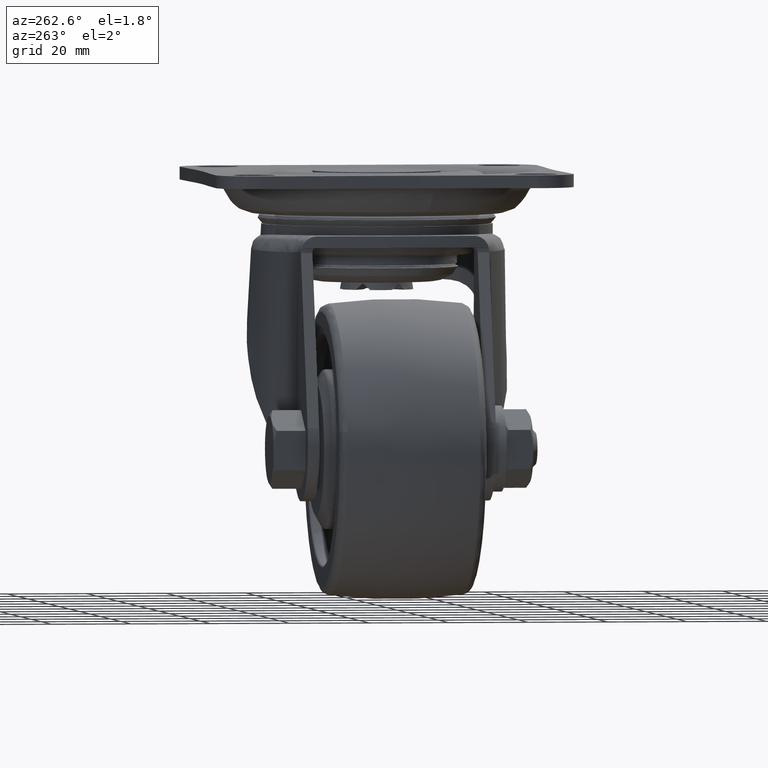
[diagram: clean part render]
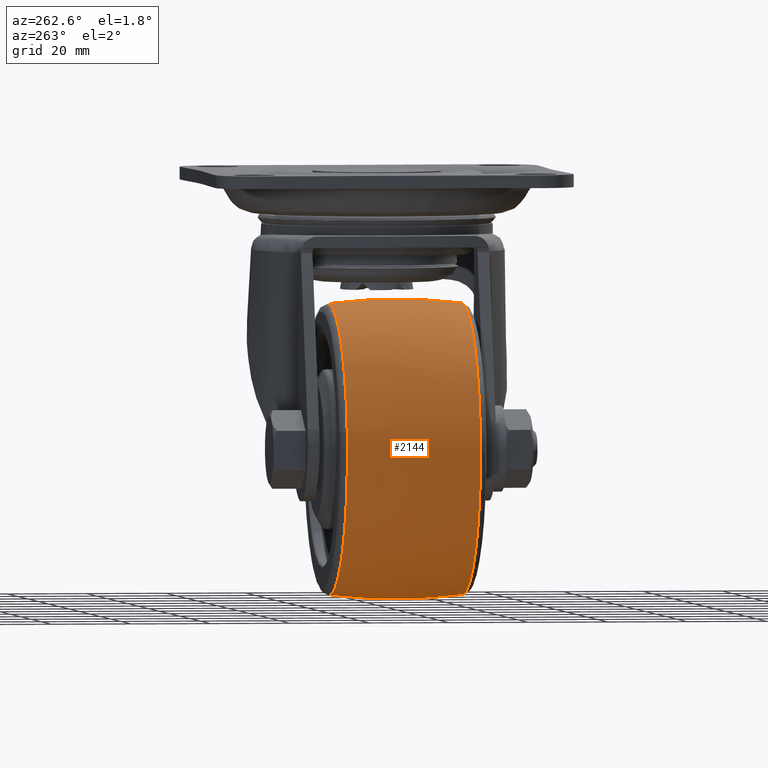
[diagram: same view with one face highlighted and labeled with its STEP entity id]
A machine part, auxiliary view. The second image highlights one B-rep face of the part: STEP entity #2144.
In plain terms, the highlighted face is a freeform B-spline surface patch.
Its self-contained STEP definition (entity closure, byte-faithful):
#1854=CARTESIAN_POINT('',(-72.128236123278612,-16.757816532794401,-73.064057613833796));
#1855=VERTEX_POINT('',#1854);
#1856=CARTESIAN_POINT('',(-36.0,-16.757817703415181,-104.915381616113090));
#1857=VERTEX_POINT('',#1856);
#1858=CARTESIAN_POINT('',(-72.128236123278612,-16.757816532794401,-73.064057613833796));
#1859=CARTESIAN_POINT('',(-68.104477913683681,-16.757817688030940,-104.915381601064270));
#1860=CARTESIAN_POINT('',(-36.0,-16.757817703415181,-104.915381616113090));
#1868=(BOUNDED_CURVE()B_SPLINE_CURVE(2,(#1858,#1859,#1860),.UNSPECIFIED.,.F.,.U.)B_SPLINE_CURVE_WITH_KNOTS((3,3),(0.771678745026697,1.0),.UNSPECIFIED.)CURVE()GEOMETRIC_REPRESENTATION_ITEM()RATIONAL_B_SPLINE_CURVE((0.953608354670807,0.732505010829369,1.0))REPRESENTATION_ITEM(''));
#1869=EDGE_CURVE('',#1855,#1857,#1868,.T.);
#1948=CARTESIAN_POINT('',(-36.0,-16.757815097045871,-32.084617906602432));
#1949=VERTEX_POINT('',#1948);
#1950=CARTESIAN_POINT('',(-36.0,-16.757815097045871,-32.084617906602432));
#1951=CARTESIAN_POINT('',(-72.415382465656535,-16.757815083482832,-32.084617893335071));
#1952=CARTESIAN_POINT('',(-72.415382346532539,-16.757816371283251,-68.499999733041548));
#1953=CARTESIAN_POINT('',(-72.415382339037890,-16.757816452304784,-70.791061527949836));
#1954=CARTESIAN_POINT('',(-72.128236123278612,-16.757816532794401,-73.064057613833796));
#1962=(BOUNDED_CURVE()B_SPLINE_CURVE(2,(#1950,#1951,#1952,#1953,#1954),.UNSPECIFIED.,.F.,.U.)B_SPLINE_CURVE_WITH_KNOTS((3,2,3),(0.500000000000000,0.750000000000000,0.771678745026697),.UNSPECIFIED.)CURVE()GEOMETRIC_REPRESENTATION_ITEM()RATIONAL_B_SPLINE_CURVE((1.0,0.707106781186547,1.0,0.974601770357179,0.953608354670807))REPRESENTATION_ITEM(''));
#1963=EDGE_CURVE('',#1949,#1855,#1962,.T.);
#2014=CARTESIAN_POINT('',(-36.0,16.757818788893740,-104.915381475010800));
#2015=VERTEX_POINT('',#2014);
#2016=CARTESIAN_POINT('',(-35.999999999999993,-16.757817703415181,-104.915381616113110));
#2017=CARTESIAN_POINT('',(-36.0,0.000000551910277,-107.093744347665620));
#2018=CARTESIAN_POINT('',(-36.0,16.757818788893736,-104.915381475010820));
#2026=(BOUNDED_CURVE()B_SPLINE_CURVE(2,(#2016,#2017,#2018),.UNSPECIFIED.,.F.,.U.)B_SPLINE_CURVE_WITH_KNOTS((3,3),(0.421172275935619,0.578827729213364),.UNSPECIFIED.)CURVE()GEOMETRIC_REPRESENTATION_ITEM()RATIONAL_B_SPLINE_CURVE((0.859354121200675,0.852184340103623,0.859354121669001))REPRESENTATION_ITEM(''));
#2027=EDGE_CURVE('',#1857,#2015,#2026,.T.);
#2044=CARTESIAN_POINT('',(-36.0,16.757818753240411,-32.084618797315329));
#2045=VERTEX_POINT('',#2044);
#2061=CARTESIAN_POINT('',(-36.0,-16.757815097045874,-32.084617906602418));
#2062=CARTESIAN_POINT('',(-36.000000000000007,0.000001859436436,-29.906255893875041));
#2063=CARTESIAN_POINT('',(-36.0,16.757818753240414,-32.084618797315336));
#2071=(BOUNDED_CURVE()B_SPLINE_CURVE(2,(#2061,#2062,#2063),.UNSPECIFIED.,.F.,.U.)B_SPLINE_CURVE_WITH_KNOTS((3,3),(0.421172288382936,0.578827729212182),.UNSPECIFIED.)CURVE()GEOMETRIC_REPRESENTATION_ITEM()RATIONAL_B_SPLINE_CURVE((0.859354120068529,0.852184340669750,0.859354121668894))REPRESENTATION_ITEM(''));
#2072=EDGE_CURVE('',#1949,#2045,#2071,.T.);
#2079=CARTESIAN_POINT('',(-34.988273708291459,-18.415811002544761,-32.311003169973574));
#2080=CARTESIAN_POINT('',(-34.914597583522294,-2.084840E-014,-29.675641148079883));
#2081=CARTESIAN_POINT('',(-34.988273708291459,18.415811002544721,-32.311003169973560));
#2082=CARTESIAN_POINT('',(-35.491190833831809,-18.415811002544761,-32.311003169973574));
#2083=CARTESIAN_POINT('',(-35.454138235794659,-2.085574E-014,-29.675641148079880));
#2084=CARTESIAN_POINT('',(-35.491190833831801,18.415811002544721,-32.311003169973553));
#2085=CARTESIAN_POINT('',(-72.188996830026440,-18.415811002544761,-32.311003169973581));
#2086=CARTESIAN_POINT('',(-74.824358851920124,-2.139110E-014,-29.675641148079887));
#2087=CARTESIAN_POINT('',(-72.188996830026454,18.415811002544729,-32.311003169973581));
#2088=CARTESIAN_POINT('',(-72.188996830026440,-18.415811002544757,-68.500000000000014));
#2089=CARTESIAN_POINT('',(-74.824358851920124,-2.086316E-014,-68.500000000000000));
#2090=CARTESIAN_POINT('',(-72.188996830026440,18.415811002544721,-68.500000000000000));
#2091=CARTESIAN_POINT('',(-72.188996830026440,-18.415811002544761,-104.688996830026480));
#2092=CARTESIAN_POINT('',(-74.824358851920124,-2.139110E-014,-107.324358851920150));
#2093=CARTESIAN_POINT('',(-72.188996830026440,18.415811002544729,-104.688996830026480));
#2094=CARTESIAN_POINT('',(-35.491190833831823,-18.415811002544761,-104.688996830026440));
#2095=CARTESIAN_POINT('',(-35.454138235794659,-2.085574E-014,-107.324358851920110));
#2096=CARTESIAN_POINT('',(-35.491190833831816,18.415811002544721,-104.688996830026430));
#2097=CARTESIAN_POINT('',(-34.988273708291466,-18.415811002544761,-104.688996830026440));
#2098=CARTESIAN_POINT('',(-34.914597583522301,-2.084840E-014,-107.324358851920110));
#2099=CARTESIAN_POINT('',(-34.988273708291459,18.415811002544721,-104.688996830026430));
#2107=(BOUNDED_SURFACE()B_SPLINE_SURFACE(2,2,((#2079,#2082,#2085,#2088,#2091,#2094,#2097),(#2080,#2083,#2086,#2089,#2092,#2095,#2098),(#2081,#2084,#2087,#2090,#2093,#2096,#2099)),.UNSPECIFIED.,.F.,.F.,.U.)B_SPLINE_SURFACE_WITH_KNOTS((3,3),(3,1,2,1,3),(0.0,37.018280014497080),(0.0,1.242640687119287,63.374675043083599,125.506709399047910,126.749350086167200),.UNSPECIFIED.)GEOMETRIC_REPRESENTATION_ITEM()RATIONAL_B_SPLINE_SURFACE(((0.870182931651120,0.865144546409802,0.608186899102564,0.860106161168483,0.608186899102564,0.865144546409802,0.870182931651120),(0.861407450252262,0.856419875311120,0.602053553312873,0.851432300369978,0.602053553312873,0.856419875311120,0.861407450252262),(0.870182931651120,0.865144546409802,0.608186899102564,0.860106161168483,0.608186899102564,0.865144546409802,0.870182931651120)))REPRESENTATION_ITEM('')SURFACE());
#2108=ORIENTED_EDGE('',*,*,#2027,.F.);
#2109=ORIENTED_EDGE('',*,*,#1869,.F.);
#2110=ORIENTED_EDGE('',*,*,#1963,.F.);
#2111=ORIENTED_EDGE('',*,*,#2072,.T.);
#2112=CARTESIAN_POINT('',(-72.002130820166840,16.757818754073991,-63.029477805647133));
#2113=VERTEX_POINT('',#2112);
#2114=CARTESIAN_POINT('',(-36.0,16.757818753240411,-32.084618797315329));
#2115=CARTESIAN_POINT('',(-67.300060620623668,16.757818746082886,-32.084618805633049));
#2116=CARTESIAN_POINT('',(-72.002130820166855,16.757818754073991,-63.029477805647133));
#2124=(BOUNDED_CURVE()B_SPLINE_CURVE(2,(#2114,#2115,#2116),.UNSPECIFIED.,.F.,.U.)B_SPLINE_CURVE_WITH_KNOTS((3,3),(0.500000000000000,0.724102414297176),.UNSPECIFIED.)CURVE()GEOMETRIC_REPRESENTATION_ITEM()RATIONAL_B_SPLINE_CURVE((1.0,0.737447690130537,0.945604232429450))REPRESENTATION_ITEM(''));
#2125=EDGE_CURVE('',#2045,#2113,#2124,.T.);
#2126=ORIENTED_EDGE('',*,*,#2125,.T.);
#2127=CARTESIAN_POINT('',(-72.002130820166855,16.757818754073991,-63.029477805647133));
#2128=CARTESIAN_POINT('',(-72.415381909623108,16.757818755870105,-65.749130190086802));
#2129=CARTESIAN_POINT('',(-72.415381913758239,16.757818757757441,-68.500000151630118));
#2130=CARTESIAN_POINT('',(-72.415381968498139,16.757818782741641,-104.915381482160140));
#2131=CARTESIAN_POINT('',(-36.0,16.757818788893740,-104.915381475010800));
#2139=(BOUNDED_CURVE()B_SPLINE_CURVE(2,(#2127,#2128,#2129,#2130,#2131),.UNSPECIFIED.,.F.,.U.)B_SPLINE_CURVE_WITH_KNOTS((3,2,3),(0.724102414297176,0.750000000000000,1.0),.UNSPECIFIED.)CURVE()GEOMETRIC_REPRESENTATION_ITEM()RATIONAL_B_SPLINE_CURVE((0.945604232429450,0.969659091056011,1.0,0.707106781186548,1.0))REPRESENTATION_ITEM(''));
#2140=EDGE_CURVE('',#2113,#2015,#2139,.T.);
#2141=ORIENTED_EDGE('',*,*,#2140,.T.);
#2142=EDGE_LOOP('',(#2108,#2109,#2110,#2111,#2126,#2141));
#2143=FACE_OUTER_BOUND('',#2142,.T.);
#2144=ADVANCED_FACE('',(#2143),#2107,.T.);